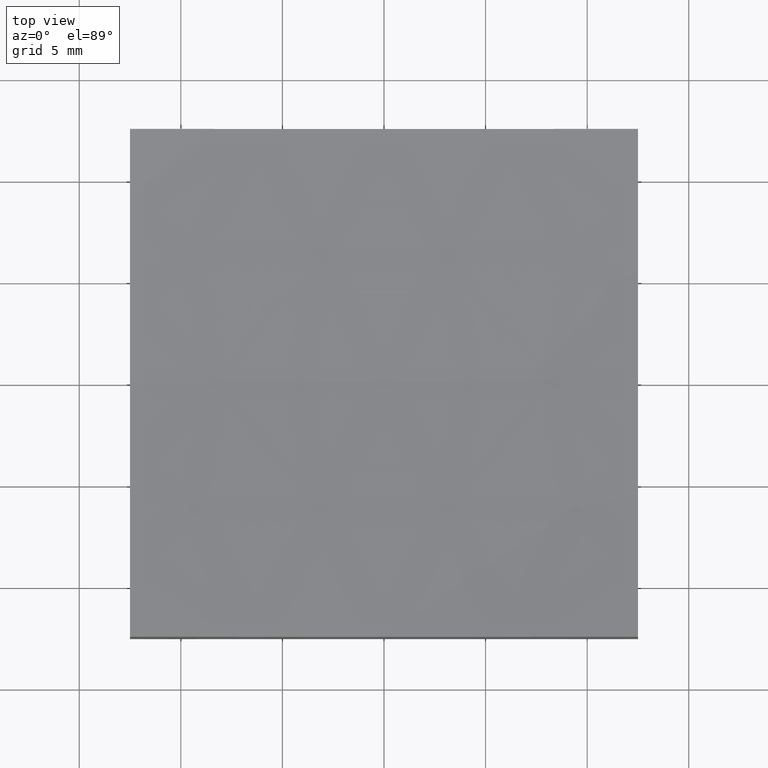
[diagram: clean part render]
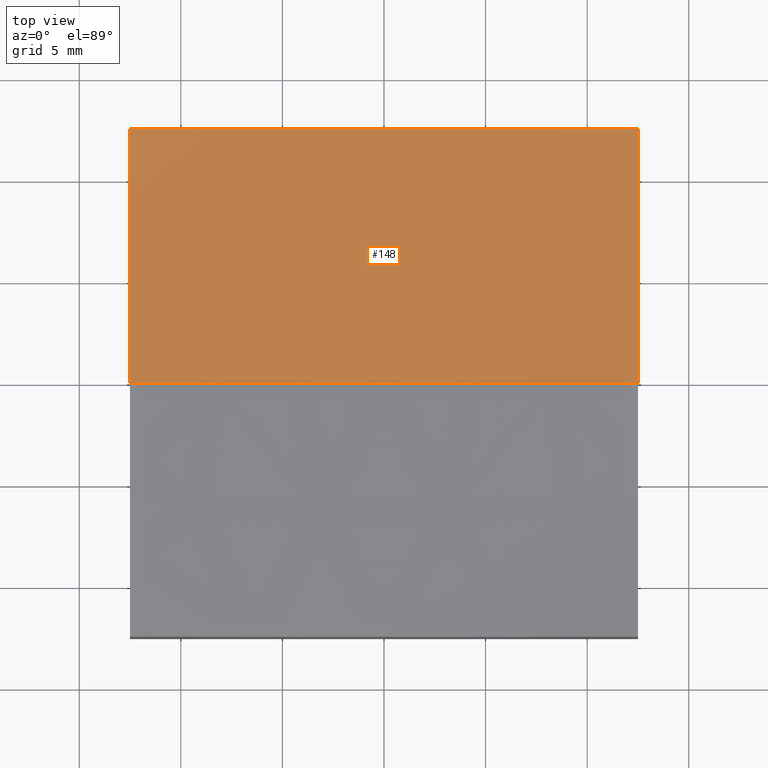
[diagram: same view with one face highlighted and labeled with its STEP entity id]
A machine part, top view. The second image highlights one B-rep face of the part: STEP entity #148.
In plain terms, the highlighted spherical surface has radius 200 mm.
Its self-contained STEP definition (entity closure, byte-faithful):
#5 = DIRECTION ( 'NONE',  ( 0.0000000000000000000, 0.0000000000000000000, -1.000000000000000000 ) ) ;
#28 = CARTESIAN_POINT ( 'NONE',  ( -12.50000000000000000, 12.50000000000000000, 6.782781868634652156 ) ) ;
#32 = CARTESIAN_POINT ( 'NONE',  ( -12.49999999999999822, 1.530808498934192310E-15, 6.391007216608610264 ) ) ;
#35 = DIRECTION ( 'NONE',  ( -1.390497253084598109E-16, 1.000000000000000000, 0.0000000000000000000 ) ) ;
#39 = CARTESIAN_POINT ( 'NONE',  ( -12.49999999999999822, -1.734723475976810644E-15, 206.0000000000000284 ) ) ;
#41 = EDGE_CURVE ( 'NONE', #119, #78, #136, .T. ) ;
#42 = CARTESIAN_POINT ( 'NONE',  ( 12.50000000000000000, 12.50000000000000000, 6.782781868634652156 ) ) ;
#43 = ORIENTED_EDGE ( 'NONE', *, *, #41, .T. ) ;
#45 = ORIENTED_EDGE ( 'NONE', *, *, #206, .T. ) ;
#54 = AXIS2_PLACEMENT_3D ( 'NONE', #243, #170, #35 ) ;
#57 = DIRECTION ( 'NONE',  ( 1.224646799147353207E-16, 1.000000000000000000, -1.241382061109245171E-32 ) ) ;
#62 = CARTESIAN_POINT ( 'NONE',  ( 2.522772406243548785E-14, 0.0000000000000000000, 206.0000000000000284 ) ) ;
#63 = ORIENTED_EDGE ( 'NONE', *, *, #132, .F. ) ;
#64 = DIRECTION ( 'NONE',  ( 0.0000000000000000000, -1.000000000000000000, -0.0000000000000000000 ) ) ;
#78 = VERTEX_POINT ( 'NONE', #28 ) ;
#81 = CIRCLE ( 'NONE', #223, 199.6089927833914146 ) ;
#82 = ORIENTED_EDGE ( 'NONE', *, *, #194, .F. ) ;
#94 = VERTEX_POINT ( 'NONE', #164 ) ;
#96 = DIRECTION ( 'NONE',  ( -1.390497253084598109E-16, 1.000000000000000000, 0.0000000000000000000 ) ) ;
#105 = DIRECTION ( 'NONE',  ( -1.000000000000000000, 1.224646799147353207E-16, 0.0000000000000000000 ) ) ;
#107 = CARTESIAN_POINT ( 'NONE',  ( 2.522772406243548785E-14, 0.0000000000000000000, 206.0000000000000284 ) ) ;
#114 = ORIENTED_EDGE ( 'NONE', *, *, #168, .T. ) ;
#119 = VERTEX_POINT ( 'NONE', #42 ) ;
#123 = CARTESIAN_POINT ( 'NONE',  ( 2.522772406243548785E-14, 0.0000000000000000000, 206.0000000000000284 ) ) ;
#124 = CARTESIAN_POINT ( 'NONE',  ( 2.522772406243548785E-14, 12.50000000000000000, 206.0000000000000284 ) ) ;
#127 = EDGE_LOOP ( 'NONE', ( #63, #114, #45, #43, #82 ) ) ;
#132 = EDGE_CURVE ( 'NONE', #94, #146, #180, .T. ) ;
#133 = CARTESIAN_POINT ( 'NONE',  ( 12.50000000000000000, 0.0000000000000000000, 6.391007216608610264 ) ) ;
#136 = CIRCLE ( 'NONE', #251, 199.6089927833914430 ) ;
#141 = DIRECTION ( 'NONE',  ( 1.000000000000000000, 0.0000000000000000000, -1.387778780781445676E-16 ) ) ;
#146 = VERTEX_POINT ( 'NONE', #32 ) ;
#148 = ADVANCED_FACE ( 'NONE', ( #239 ), #174, .F. ) ;
#150 = AXIS2_PLACEMENT_3D ( 'NONE', #62, #237, #141 ) ;
#156 = CIRCLE ( 'NONE', #54, 199.6089927833914146 ) ;
#157 = AXIS2_PLACEMENT_3D ( 'NONE', #123, #57, #105 ) ;
#163 = DIRECTION ( 'NONE',  ( 0.0000000000000000000, 1.000000000000000000, 0.0000000000000000000 ) ) ;
#164 = CARTESIAN_POINT ( 'NONE',  ( 1.720088448517093624E-14, 0.0000000000000000000, 6.000000000000005329 ) ) ;
#168 = EDGE_CURVE ( 'NONE', #94, #228, #230, .T. ) ;
#170 = DIRECTION ( 'NONE',  ( 1.000000000000000000, 1.387778780781445676E-16, -0.0000000000000000000 ) ) ;
#174 = SPHERICAL_SURFACE ( 'NONE', #150, 200.0000000000000000 ) ;
#180 = CIRCLE ( 'NONE', #157, 200.0000000000000000 ) ;
#192 = DIRECTION ( 'NONE',  ( 1.000000000000000000, 1.387778780781445676E-16, -0.0000000000000000000 ) ) ;
#194 = EDGE_CURVE ( 'NONE', #146, #78, #81, .T. ) ;
#206 = EDGE_CURVE ( 'NONE', #228, #119, #156, .T. ) ;
#220 = DIRECTION ( 'NONE',  ( 0.0000000000000000000, 0.0000000000000000000, 1.000000000000000000 ) ) ;
#223 = AXIS2_PLACEMENT_3D ( 'NONE', #39, #192, #96 ) ;
#228 = VERTEX_POINT ( 'NONE', #133 ) ;
#230 = CIRCLE ( 'NONE', #236, 200.0000000000000000 ) ;
#236 = AXIS2_PLACEMENT_3D ( 'NONE', #107, #64, #5 ) ;
#237 = DIRECTION ( 'NONE',  ( 0.0000000000000000000, 1.000000000000000000, 0.0000000000000000000 ) ) ;
#239 = FACE_OUTER_BOUND ( 'NONE', #127, .T. ) ;
#243 = CARTESIAN_POINT ( 'NONE',  ( 12.50000000000000178, 1.734723475976803742E-15, 206.0000000000000284 ) ) ;
#251 = AXIS2_PLACEMENT_3D ( 'NONE', #124, #163, #220 ) ;